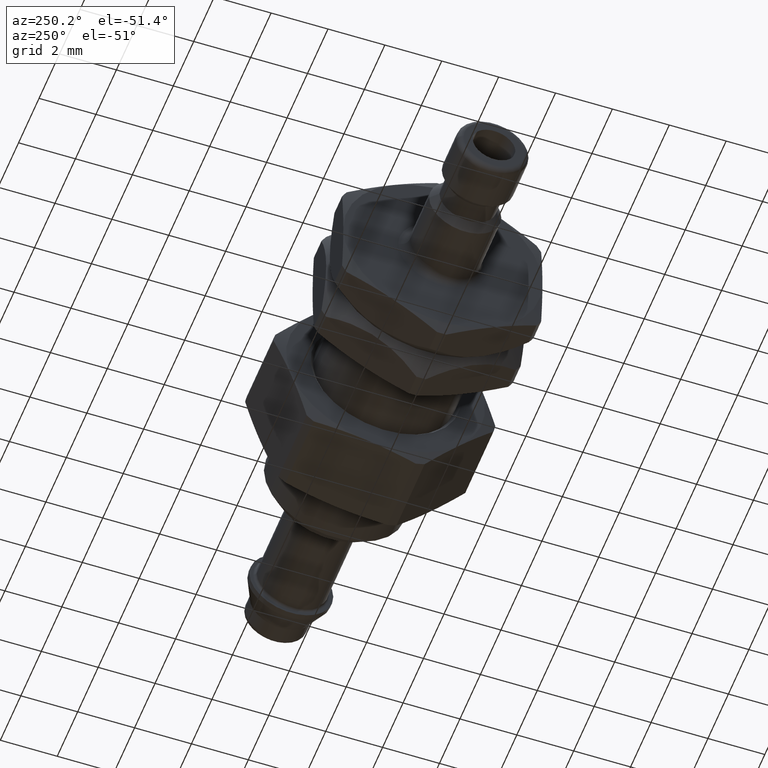
[diagram: clean part render]
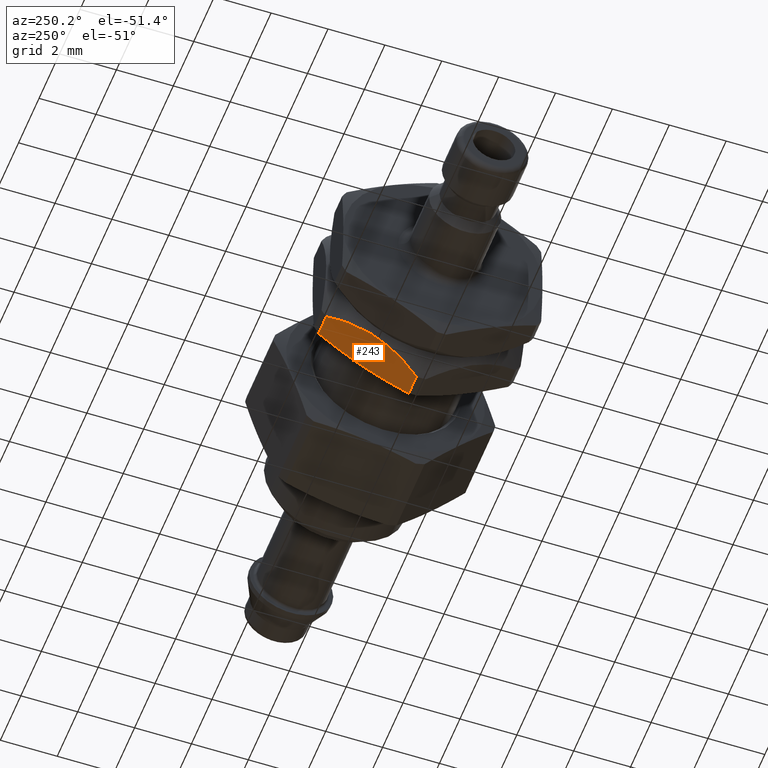
[diagram: same view with one face highlighted and labeled with its STEP entity id]
A machine part, auxiliary view. The second image highlights one B-rep face of the part: STEP entity #243.
In plain terms, the highlighted planar face has unit normal (0, -0.5, 0.866).
Its self-contained STEP definition (entity closure, byte-faithful):
#175=CARTESIAN_POINT('',(9.156977203165798,1.749999999999998,-3.031088913245537));
#176=DIRECTION('',(2.401388E-016,-0.499999999999999,0.866025403784439));
#177=DIRECTION('',(1.333038E-032,-0.866025403784439,-0.499999999999999));
#178=AXIS2_PLACEMENT_3D('',#175,#176,#177);
#179=PLANE('',#178);
#180=CARTESIAN_POINT('',(7.130694390978056,3.335678088389946,-2.115597242065511));
#181=VERTEX_POINT('',#180);
#182=CARTESIAN_POINT('',(7.130694390978056,0.164321911610048,-3.946580584425564));
#183=VERTEX_POINT('',#182);
#184=CARTESIAN_POINT('',(7.130694390978056,3.335678088389946,-2.115597242065512));
#185=CARTESIAN_POINT('',(6.281960213762869,1.749999999999997,-3.031088913245537));
#186=CARTESIAN_POINT('',(7.130694390978056,0.164321911610050,-3.946580584425564));
#194=(BOUNDED_CURVE()B_SPLINE_CURVE(2,(#184,#185,#186),.UNSPECIFIED.,.F.,.U.)B_SPLINE_CURVE_WITH_KNOTS((3,3),(0.0,0.377094152699296),.UNSPECIFIED.)CURVE()GEOMETRIC_REPRESENTATION_ITEM()RATIONAL_B_SPLINE_CURVE((1.0,1.128571428571430,1.0))REPRESENTATION_ITEM(''));
#195=EDGE_CURVE('',#181,#183,#194,.T.);
#196=ORIENTED_EDGE('',*,*,#195,.F.);
#197=CARTESIAN_POINT('',(7.879422863405994,3.335678088389946,-2.115597242065512));
#198=VERTEX_POINT('',#197);
#199=CARTESIAN_POINT('',(7.879422863405994,3.335678088389946,-2.115597242065511));
#200=DIRECTION('',(-1.0,0.0,0.0));
#201=VECTOR('',#200,0.748728472427938);
#202=LINE('',#199,#201);
#203=EDGE_CURVE('',#198,#181,#202,.T.);
#204=ORIENTED_EDGE('',*,*,#203,.F.);
#205=CARTESIAN_POINT('',(7.999999999999998,1.749999999999998,-3.031088913245537));
#206=VERTEX_POINT('',#205);
#207=CARTESIAN_POINT('',(7.999999999999998,1.749999999999998,-3.031088913245537));
#208=CARTESIAN_POINT('',(7.999999999999998,2.494949437498637,-2.600992154973039));
#209=CARTESIAN_POINT('',(7.879422863405993,3.335678088389951,-2.115597242065509));
#217=(BOUNDED_CURVE()B_SPLINE_CURVE(2,(#207,#208,#209),.UNSPECIFIED.,.F.,.U.)B_SPLINE_CURVE_WITH_KNOTS((3,3),(0.183584795094288,0.367169590188576),.UNSPECIFIED.)CURVE()GEOMETRIC_REPRESENTATION_ITEM()RATIONAL_B_SPLINE_CURVE((1.0,1.031642241421694,1.0))REPRESENTATION_ITEM(''));
#218=EDGE_CURVE('',#206,#198,#217,.T.);
#219=ORIENTED_EDGE('',*,*,#218,.F.);
#220=CARTESIAN_POINT('',(7.879422863405994,0.164321911610050,-3.946580584425564));
#221=VERTEX_POINT('',#220);
#222=CARTESIAN_POINT('',(7.879422863405993,0.164321911610046,-3.946580584425567));
#223=CARTESIAN_POINT('',(7.999999999999998,1.005050562501353,-3.461185671518040));
#224=CARTESIAN_POINT('',(7.999999999999998,1.749999999999998,-3.031088913245537));
#232=(BOUNDED_CURVE()B_SPLINE_CURVE(2,(#222,#223,#224),.UNSPECIFIED.,.F.,.U.)B_SPLINE_CURVE_WITH_KNOTS((3,3),(0.0,0.183584795094288),.UNSPECIFIED.)CURVE()GEOMETRIC_REPRESENTATION_ITEM()RATIONAL_B_SPLINE_CURVE((1.0,1.031642241421737,1.0))REPRESENTATION_ITEM(''));
#233=EDGE_CURVE('',#221,#206,#232,.T.);
#234=ORIENTED_EDGE('',*,*,#233,.F.);
#235=CARTESIAN_POINT('',(7.130694390978055,0.164321911610048,-3.946580584425564));
#236=DIRECTION('',(1.0,0.0,0.0));
#237=VECTOR('',#236,0.748728472427938);
#238=LINE('',#235,#237);
#239=EDGE_CURVE('',#183,#221,#238,.T.);
#240=ORIENTED_EDGE('',*,*,#239,.F.);
#241=EDGE_LOOP('',(#196,#204,#219,#234,#240));
#242=FACE_OUTER_BOUND('',#241,.T.);
#243=ADVANCED_FACE('',(#242),#179,.F.);